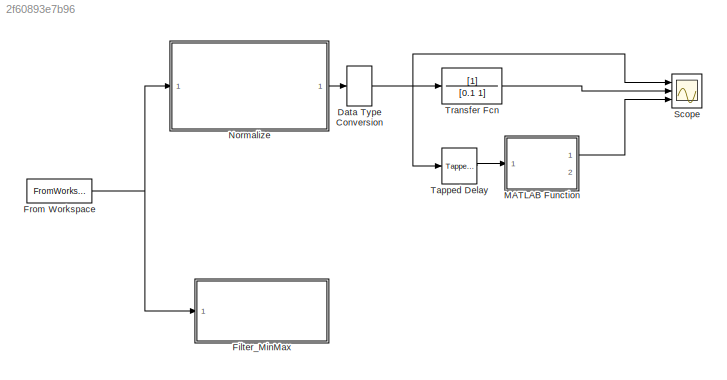
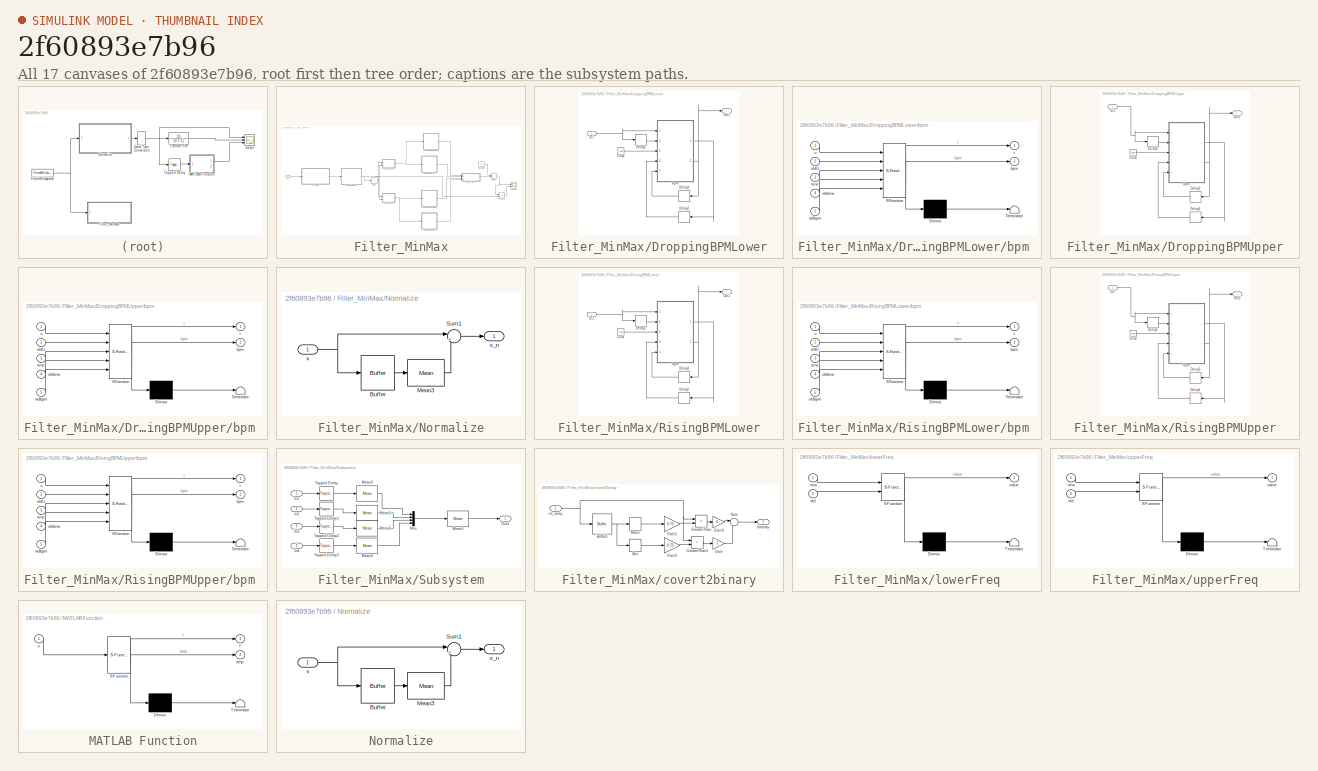
[diagram: thumbnail index - all 17 canvases of the model, root first then tree order]
MODEL slx_2f60893e7b96
KIND model
CONFIG AbsTol = auto
CONFIG EnableMultiTasking = off
CONFIG FixedStep = stepTime
CONFIG MaxStep = auto
CONFIG MinStep = auto
CONFIG RelTol = 1e-3
CONFIG SampleTimeConstraint = Unconstrained
CONFIG Solver = ode4
CONFIG SolverName = ode4
CONFIG StartTime = 0.0
CONFIG StopTime = 10
BLOCK [DataTypeConversion] Data Type Conversion
  OutDataTypeStr = double
  RndMeth = Floor
  SaturateOnIntegerOverflow = off
BLOCK [SubSystem] Filter_MinMax
  Commented = on
  Ports = [1]
  RequestExecContextInheritance = off
BLOCK [Constant] Filter_MinMax/Constant
  Value = 60
BLOCK [Delay] Filter_MinMax/Delay
  DelayLength = 1
  InputPortMap = u0
  Ports = [1, 1]
BLOCK [Product] Filter_MinMax/Divide
  InputSameDT = off
  Inputs = */
  OutDataTypeStr = Inherit: Inherit via internal rule
  Ports = [2, 1]
  RndMeth = Floor
  SaturateOnIntegerOverflow = off
BLOCK [SubSystem] Filter_MinMax/DroppingBPMLower
  Ports = [1, 1]
  RequestExecContextInheritance = off
BLOCK [Clock] Filter_MinMax/DroppingBPMLower/Clock
BLOCK [Delay] Filter_MinMax/DroppingBPMLower/Delay1
  DelayLength = 1
  InputPortMap = u0
  Ports = [1, 1]
BLOCK [Delay] Filter_MinMax/DroppingBPMLower/Delay2
  DelayLength = 1
  InputPortMap = u0
  Ports = [1, 1]
BLOCK [Delay] Filter_MinMax/DroppingBPMLower/Delay3
  DelayLength = 1
  InputPortMap = u0
  Ports = [1, 1]
BLOCK [Inport] Filter_MinMax/DroppingBPMLower/In1
  IconDisplay = Port number
BLOCK [Outport] Filter_MinMax/DroppingBPMLower/Out1
  IconDisplay = Port number
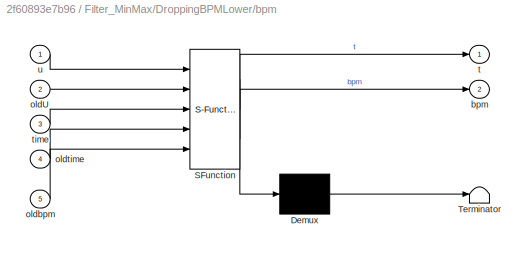
BLOCK [SubSystem] Filter_MinMax/DroppingBPMLower/bpm 
  ErrorFcn = Stateflow.Translate.translate
  PermitHierarchicalResolution = ExplicitOnly
  Ports = [5, 2]
  RequestExecContextInheritance = off
  SFBlockType = MATLAB Function
  TreatAsAtomicUnit = on
BLOCK [Demux] Filter_MinMax/DroppingBPMLower/bpm / Demux 
  Outputs = 1
  Ports = [1, 1]
BLOCK [S-Function] Filter_MinMax/DroppingBPMLower/bpm / SFunction 
  EnableBusSupport = on
  FunctionName = sf_sfun
  PortCounts = [5 3]
  Ports = [5, 3]
  SFcnIsStateOwnerBlock = off
  SFunctionDeploymentMode = off
  Tag = Stateflow S-Function filterAnalyse 4
BLOCK [Terminator] Filter_MinMax/DroppingBPMLower/bpm / Terminator 
BLOCK [Outport] Filter_MinMax/DroppingBPMLower/bpm /bpm
  IconDisplay = Port number
  Port = 2
BLOCK [Inport] Filter_MinMax/DroppingBPMLower/bpm /oldU
  IconDisplay = Port number
  Port = 2
BLOCK [Inport] Filter_MinMax/DroppingBPMLower/bpm /oldbpm
  IconDisplay = Port number
  Port = 5
BLOCK [Inport] Filter_MinMax/DroppingBPMLower/bpm /oldtime
  IconDisplay = Port number
  Port = 4
BLOCK [Outport] Filter_MinMax/DroppingBPMLower/bpm /t
  IconDisplay = Port number
BLOCK [Inport] Filter_MinMax/DroppingBPMLower/bpm /time
  IconDisplay = Port number
  Port = 3
BLOCK [Inport] Filter_MinMax/DroppingBPMLower/bpm /u
  IconDisplay = Port number
BLOCK [SubSystem] Filter_MinMax/DroppingBPMUpper
  Ports = [1, 1]
  RequestExecContextInheritance = off
BLOCK [Clock] Filter_MinMax/DroppingBPMUpper/Clock
BLOCK [Delay] Filter_MinMax/DroppingBPMUpper/Delay1
  DelayLength = 1
  InputPortMap = u0
  Ports = [1, 1]
BLOCK [Delay] Filter_MinMax/DroppingBPMUpper/Delay2
  DelayLength = 1
  InputPortMap = u0
  Ports = [1, 1]
BLOCK [Delay] Filter_MinMax/DroppingBPMUpper/Delay3
  DelayLength = 1
  InputPortMap = u0
  Ports = [1, 1]
BLOCK [Inport] Filter_MinMax/DroppingBPMUpper/In1
  IconDisplay = Port number
BLOCK [Outport] Filter_MinMax/DroppingBPMUpper/Out1
  IconDisplay = Port number
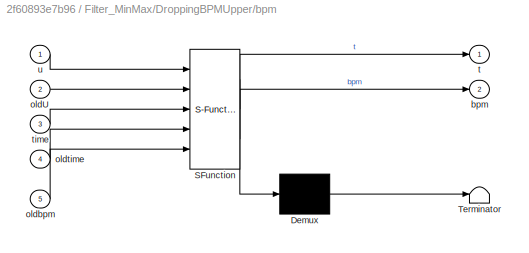
BLOCK [SubSystem] Filter_MinMax/DroppingBPMUpper/bpm 
  ErrorFcn = Stateflow.Translate.translate
  PermitHierarchicalResolution = ExplicitOnly
  Ports = [5, 2]
  RequestExecContextInheritance = off
  SFBlockType = MATLAB Function
  TreatAsAtomicUnit = on
BLOCK [Demux] Filter_MinMax/DroppingBPMUpper/bpm / Demux 
  Outputs = 1
  Ports = [1, 1]
BLOCK [S-Function] Filter_MinMax/DroppingBPMUpper/bpm / SFunction 
  EnableBusSupport = on
  FunctionName = sf_sfun
  PortCounts = [5 3]
  Ports = [5, 3]
  SFcnIsStateOwnerBlock = off
  SFunctionDeploymentMode = off
  Tag = Stateflow S-Function filterAnalyse 6
BLOCK [Terminator] Filter_MinMax/DroppingBPMUpper/bpm / Terminator 
BLOCK [Outport] Filter_MinMax/DroppingBPMUpper/bpm /bpm
  IconDisplay = Port number
  Port = 2
BLOCK [Inport] Filter_MinMax/DroppingBPMUpper/bpm /oldU
  IconDisplay = Port number
  Port = 2
BLOCK [Inport] Filter_MinMax/DroppingBPMUpper/bpm /oldbpm
  IconDisplay = Port number
  Port = 5
BLOCK [Inport] Filter_MinMax/DroppingBPMUpper/bpm /oldtime
  IconDisplay = Port number
  Port = 4
BLOCK [Outport] Filter_MinMax/DroppingBPMUpper/bpm /t
  IconDisplay = Port number
BLOCK [Inport] Filter_MinMax/DroppingBPMUpper/bpm /time
  IconDisplay = Port number
  Port = 3
BLOCK [Inport] Filter_MinMax/DroppingBPMUpper/bpm /u
  IconDisplay = Port number
BLOCK [Inport] Filter_MinMax/In1
  IconDisplay = Port number
BLOCK [SubSystem] Filter_MinMax/Normalize
  Ports = [1, 1]
  RequestExecContextInheritance = off
BLOCK [Buffer] Filter_MinMax/Normalize/Buffer
  N = normalizeBufferSize
  OutputFrames = off
BLOCK [Reference] Filter_MinMax/Normalize/Mean3  REF=dspstat3/Mean
  Ports = [1, 1]
  SourceBlock = dspstat3/Mean
  SourceProductBaseCode = DS
  SourceProductName = DSP System Toolbox
  SourceType = Mean
  UserDataPersistent = on
BLOCK [Sum] Filter_MinMax/Normalize/Sum1
  IconShape = round
  InputSameDT = off
  Inputs = |+-
  OutDataTypeStr = Inherit: Inherit via internal rule
  Ports = [2, 1]
  SaturateOnIntegerOverflow = off
BLOCK [Inport] Filter_MinMax/Normalize/x
  IconDisplay = Port number
BLOCK [Outport] Filter_MinMax/Normalize/x_n
  IconDisplay = Port number
BLOCK [Product] Filter_MinMax/Product
  InputSameDT = off
  OutDataTypeStr = Inherit: Inherit via internal rule
  Ports = [2, 1]
  RndMeth = Floor
  SaturateOnIntegerOverflow = off
BLOCK [SubSystem] Filter_MinMax/RisingBPMLower
  Ports = [1, 1]
  RequestExecContextInheritance = off
BLOCK [Clock] Filter_MinMax/RisingBPMLower/Clock
BLOCK [Delay] Filter_MinMax/RisingBPMLower/Delay1
  DelayLength = 1
  InputPortMap = u0
  Ports = [1, 1]
BLOCK [Delay] Filter_MinMax/RisingBPMLower/Delay2
  DelayLength = 1
  InputPortMap = u0
  Ports = [1, 1]
BLOCK [Delay] Filter_MinMax/RisingBPMLower/Delay3
  DelayLength = 1
  InputPortMap = u0
  Ports = [1, 1]
BLOCK [Inport] Filter_MinMax/RisingBPMLower/In1
  IconDisplay = Port number
BLOCK [Outport] Filter_MinMax/RisingBPMLower/Out1
  IconDisplay = Port number
BLOCK [SubSystem] Filter_MinMax/RisingBPMLower/bpm 
  ErrorFcn = Stateflow.Translate.translate
  PermitHierarchicalResolution = ExplicitOnly
  Ports = [5, 2]
  RequestExecContextInheritance = off
  SFBlockType = MATLAB Function
  TreatAsAtomicUnit = on
BLOCK [Demux] Filter_MinMax/RisingBPMLower/bpm / Demux 
  Outputs = 1
  Ports = [1, 1]
BLOCK [S-Function] Filter_MinMax/RisingBPMLower/bpm / SFunction 
  EnableBusSupport = on
  FunctionName = sf_sfun
  PortCounts = [5 3]
  Ports = [5, 3]
  SFcnIsStateOwnerBlock = off
  SFunctionDeploymentMode = off
  Tag = Stateflow S-Function filterAnalyse 5
BLOCK [Terminator] Filter_MinMax/RisingBPMLower/bpm / Terminator 
BLOCK [Outport] Filter_MinMax/RisingBPMLower/bpm /bpm
  IconDisplay = Port number
  Port = 2
BLOCK [Inport] Filter_MinMax/RisingBPMLower/bpm /oldU
  IconDisplay = Port number
  Port = 2
BLOCK [Inport] Filter_MinMax/RisingBPMLower/bpm /oldbpm
  IconDisplay = Port number
  Port = 5
BLOCK [Inport] Filter_MinMax/RisingBPMLower/bpm /oldtime
  IconDisplay = Port number
  Port = 4
BLOCK [Outport] Filter_MinMax/RisingBPMLower/bpm /t
  IconDisplay = Port number
BLOCK [Inport] Filter_MinMax/RisingBPMLower/bpm /time
  IconDisplay = Port number
  Port = 3
BLOCK [Inport] Filter_MinMax/RisingBPMLower/bpm /u
  IconDisplay = Port number
BLOCK [SubSystem] Filter_MinMax/RisingBPMUpper
  Ports = [1, 1]
  RequestExecContextInheritance = off
BLOCK [Clock] Filter_MinMax/RisingBPMUpper/Clock
BLOCK [Delay] Filter_MinMax/RisingBPMUpper/Delay1
  DelayLength = 1
  InputPortMap = u0
  Ports = [1, 1]
BLOCK [Delay] Filter_MinMax/RisingBPMUpper/Delay2
  DelayLength = 1
  InputPortMap = u0
  Ports = [1, 1]
BLOCK [Delay] Filter_MinMax/RisingBPMUpper/Delay3
  DelayLength = 1
  InputPortMap = u0
  Ports = [1, 1]
BLOCK [Inport] Filter_MinMax/RisingBPMUpper/In1
  IconDisplay = Port number
BLOCK [Outport] Filter_MinMax/RisingBPMUpper/Out1
  IconDisplay = Port number
BLOCK [SubSystem] Filter_MinMax/RisingBPMUpper/bpm 
  ErrorFcn = Stateflow.Translate.translate
  PermitHierarchicalResolution = ExplicitOnly
  Ports = [5, 2]
  RequestExecContextInheritance = off
  SFBlockType = MATLAB Function
  TreatAsAtomicUnit = on
BLOCK [Demux] Filter_MinMax/RisingBPMUpper/bpm / Demux 
  Outputs = 1
  Ports = [1, 1]
BLOCK [S-Function] Filter_MinMax/RisingBPMUpper/bpm / SFunction 
  EnableBusSupport = on
  FunctionName = sf_sfun
  PortCounts = [5 3]
  Ports = [5, 3]
  SFcnIsStateOwnerBlock = off
  SFunctionDeploymentMode = off
  Tag = Stateflow S-Function filterAnalyse 3
BLOCK [Terminator] Filter_MinMax/RisingBPMUpper/bpm / Terminator 
BLOCK [Outport] Filter_MinMax/RisingBPMUpper/bpm /bpm
  IconDisplay = Port number
  Port = 2
BLOCK [Inport] Filter_MinMax/RisingBPMUpper/bpm /oldU
  IconDisplay = Port number
  Port = 2
BLOCK [Inport] Filter_MinMax/RisingBPMUpper/bpm /oldbpm
  IconDisplay = Port number
  Port = 5
BLOCK [Inport] Filter_MinMax/RisingBPMUpper/bpm /oldtime
  IconDisplay = Port number
  Port = 4
BLOCK [Outport] Filter_MinMax/RisingBPMUpper/bpm /t
  IconDisplay = Port number
BLOCK [Inport] Filter_MinMax/RisingBPMUpper/bpm /time
  IconDisplay = Port number
  Port = 3
BLOCK [Inport] Filter_MinMax/RisingBPMUpper/bpm /u
  IconDisplay = Port number
BLOCK [Scope] Filter_MinMax/Scope1
  Floating = off
  NumInputPorts = 2
  Ports = [2]
  ScopeSpecificationString = Simulink.scopes.TimeScopeBlockCfg('CurrentConfiguration', extmgr.ConfigurationSet(extmgr.Configuration('Core','General UI',true),extmgr.Configuration('Core','Source UI',true),extmgr.Configuration('Sources','WiredSimulink',true,'DataLoggingVariableName','ScopeData2'),extmgr.Configuration('Visuals','Time Domain',true,'SerializedDisplays',{struct('MinYLimReal','-185.05331','MaxYLimReal','198.70317','...<+1497ch>
BLOCK [SubSystem] Filter_MinMax/Subsystem
  Ports = [4, 1]
  RequestExecContextInheritance = off
BLOCK [Inport] Filter_MinMax/Subsystem/In1
  IconDisplay = Port number
BLOCK [Inport] Filter_MinMax/Subsystem/In2
  IconDisplay = Port number
  Port = 2
BLOCK [Inport] Filter_MinMax/Subsystem/In3
  IconDisplay = Port number
  Port = 3
BLOCK [Inport] Filter_MinMax/Subsystem/In4
  IconDisplay = Port number
  Port = 4
BLOCK [Reference] Filter_MinMax/Subsystem/Mean1  REF=dspstat3/Mean
  Ports = [1, 1]
  SourceBlock = dspstat3/Mean
  SourceProductBaseCode = DS
  SourceProductName = DSP System Toolbox
  SourceType = Mean
  UserDataPersistent = on
BLOCK [Reference] Filter_MinMax/Subsystem/Mean2  REF=dspstat3/Mean
  Ports = [1, 1]
  SourceBlock = dspstat3/Mean
  SourceProductBaseCode = DS
  SourceProductName = DSP System Toolbox
  SourceType = Mean
  UserDataPersistent = on
BLOCK [Reference] Filter_MinMax/Subsystem/Mean3  REF=dspstat3/Mean
  Ports = [1, 1]
  SourceBlock = dspstat3/Mean
  SourceProductBaseCode = DS
  SourceProductName = DSP System Toolbox
  SourceType = Mean
  UserDataPersistent = on
BLOCK [Reference] Filter_MinMax/Subsystem/Mean4  REF=dspstat3/Mean
  Ports = [1, 1]
  SourceBlock = dspstat3/Mean
  SourceProductBaseCode = DS
  SourceProductName = DSP System Toolbox
  SourceType = Mean
  UserDataPersistent = on
BLOCK [Reference] Filter_MinMax/Subsystem/Mean5  REF=dspstat3/Mean
  Ports = [1, 1]
  SourceBlock = dspstat3/Mean
  SourceProductBaseCode = DS
  SourceProductName = DSP System Toolbox
  SourceType = Mean
  UserDataPersistent = on
BLOCK [Mux] Filter_MinMax/Subsystem/Mux
  DisplayOption = bar
  Ports = [4, 1]
BLOCK [Outport] Filter_MinMax/Subsystem/Out1
  IconDisplay = Port number
BLOCK [Reference] Filter_MinMax/Subsystem/Tapped Delay  REF=simulink/Discrete/Tapped Delay
  Ports = [1, 1]
  SourceBlock = simulink/Discrete/Tapped Delay
  SourceProductBaseCode = SL
  SourceProductName = Simulink
  SourceType = Tapped Delay Line
BLOCK [Reference] Filter_MinMax/Subsystem/Tapped Delay1  REF=simulink/Discrete/Tapped Delay
  Ports = [1, 1]
  SourceBlock = simulink/Discrete/Tapped Delay
  SourceProductBaseCode = SL
  SourceProductName = Simulink
  SourceType = Tapped Delay Line
BLOCK [Reference] Filter_MinMax/Subsystem/Tapped Delay2  REF=simulink/Discrete/Tapped Delay
  Ports = [1, 1]
  SourceBlock = simulink/Discrete/Tapped Delay
  SourceProductBaseCode = SL
  SourceProductName = Simulink
  SourceType = Tapped Delay Line
BLOCK [Reference] Filter_MinMax/Subsystem/Tapped Delay3  REF=simulink/Discrete/Tapped Delay
  Ports = [1, 1]
  SourceBlock = simulink/Discrete/Tapped Delay
  SourceProductBaseCode = SL
  SourceProductName = Simulink
  SourceType = Tapped Delay Line
BLOCK [SubSystem] Filter_MinMax/covert2binary
  Ports = [1, 1]
  RequestExecContextInheritance = off
BLOCK [Buffer] Filter_MinMax/covert2binary/Buffer1
  N = minmaxBuffer
  OutputFrames = off
BLOCK [Gain] Filter_MinMax/covert2binary/Gain
  Gain = -1
  OutDataTypeStr = Inherit: Inherit via internal rule
  ParamDataTypeStr = Inherit: Inherit via internal rule
  SaturateOnIntegerOverflow = off
BLOCK [Gain] Filter_MinMax/covert2binary/Gain1
  Gain = 0.75
  OutDataTypeStr = Inherit: Inherit via internal rule
  ParamDataTypeStr = Inherit: Inherit via internal rule
  SaturateOnIntegerOverflow = off
BLOCK [Gain] Filter_MinMax/covert2binary/Gain2
  Gain = 0.75
  OutDataTypeStr = Inherit: Inherit via internal rule
  ParamDataTypeStr = Inherit: Inherit via internal rule
  SaturateOnIntegerOverflow = off
BLOCK [Gain] Filter_MinMax/covert2binary/Gain3
  OutDataTypeStr = Inherit: Inherit via internal rule
  ParamDataTypeStr = Inherit: Inherit via internal rule
  SaturateOnIntegerOverflow = off
BLOCK [RelationalOperator] Filter_MinMax/covert2binary/GreaterThan
  InputSameDT = off
  Operator = >
  OutDataTypeStr = boolean
  Ports = [2, 1]
  RndMeth = Simplest
BLOCK [RelationalOperator] Filter_MinMax/covert2binary/GreaterThan1
  InputSameDT = off
  Operator = <
  OutDataTypeStr = boolean
  Ports = [2, 1]
  RndMeth = Simplest
BLOCK [MinMax] Filter_MinMax/covert2binary/Max1
  Function = max
  InputSameDT = off
  Ports = [1, 1]
  SaturateOnIntegerOverflow = off
BLOCK [MinMax] Filter_MinMax/covert2binary/Min
  InputSameDT = off
  Ports = [1, 1]
  SaturateOnIntegerOverflow = off
BLOCK [Sum] Filter_MinMax/covert2binary/Sum
  IconShape = round
  InputSameDT = off
  Inputs = |++
  OutDataTypeStr = Inherit: Inherit via internal rule
  Ports = [2, 1]
  SaturateOnIntegerOverflow = off
BLOCK [Outport] Filter_MinMax/covert2binary/bitarray
  IconDisplay = Port number
BLOCK [Inport] Filter_MinMax/covert2binary/int_array
  IconDisplay = Port number
BLOCK [SubSystem] Filter_MinMax/lowerFreq
  ErrorFcn = Stateflow.Translate.translate
  PermitHierarchicalResolution = ExplicitOnly
  Ports = [2, 1]
  RequestExecContextInheritance = off
  SFBlockType = MATLAB Function
  TreatAsAtomicUnit = on
BLOCK [Demux] Filter_MinMax/lowerFreq/ Demux 
  Outputs = 1
  Ports = [1, 1]
BLOCK [S-Function] Filter_MinMax/lowerFreq/ SFunction 
  EnableBusSupport = on
  FunctionName = sf_sfun
  PortCounts = [2 2]
  Ports = [2, 2]
  SFcnIsStateOwnerBlock = off
  SFunctionDeploymentMode = off
  Tag = Stateflow S-Function filterAnalyse 1
BLOCK [Terminator] Filter_MinMax/lowerFreq/ Terminator 
BLOCK [Inport] Filter_MinMax/lowerFreq/new
  IconDisplay = Port number
BLOCK [Inport] Filter_MinMax/lowerFreq/old
  IconDisplay = Port number
  Port = 2
BLOCK [Outport] Filter_MinMax/lowerFreq/value
  IconDisplay = Port number
BLOCK [SubSystem] Filter_MinMax/upperFreq
  ErrorFcn = Stateflow.Translate.translate
  PermitHierarchicalResolution = ExplicitOnly
  Ports = [2, 1]
  RequestExecContextInheritance = off
  SFBlockType = MATLAB Function
  TreatAsAtomicUnit = on
BLOCK [Demux] Filter_MinMax/upperFreq/ Demux 
  Outputs = 1
  Ports = [1, 1]
BLOCK [S-Function] Filter_MinMax/upperFreq/ SFunction 
  EnableBusSupport = on
  FunctionName = sf_sfun
  PortCounts = [2 2]
  Ports = [2, 2]
  SFcnIsStateOwnerBlock = off
  SFunctionDeploymentMode = off
  Tag = Stateflow S-Function filterAnalyse 2
BLOCK [Terminator] Filter_MinMax/upperFreq/ Terminator 
BLOCK [Inport] Filter_MinMax/upperFreq/new
  IconDisplay = Port number
BLOCK [Inport] Filter_MinMax/upperFreq/old
  IconDisplay = Port number
  Port = 2
BLOCK [Outport] Filter_MinMax/upperFreq/value
  IconDisplay = Port number
BLOCK [FromWorkspace] From Workspace
  Interpolate = off
  OutDataTypeStr = int16
  OutputAfterFinalValue = Setting to zero
  SampleTime = stepTime
  VariableName = tsRate
  ZeroCross = on
BLOCK [SubSystem] MATLAB Function
  ErrorFcn = Stateflow.Translate.translate
  PermitHierarchicalResolution = ExplicitOnly
  Ports = [1, 2]
  RequestExecContextInheritance = off
  SFBlockType = MATLAB Function
  TreatAsAtomicUnit = on
BLOCK [Demux] MATLAB Function/ Demux 
  Outputs = 1
  Ports = [1, 1]
BLOCK [S-Function] MATLAB Function/ SFunction 
  EnableBusSupport = on
  FunctionName = sf_sfun
  PortCounts = [1 3]
  Ports = [1, 3]
  SFcnIsStateOwnerBlock = off
  SFunctionDeploymentMode = off
  Tag = Stateflow S-Function filterAnalyse 7
BLOCK [Terminator] MATLAB Function/ Terminator 
BLOCK [Outport] MATLAB Function/amp
  IconDisplay = Port number
  Port = 2
BLOCK [Outport] MATLAB Function/f
  IconDisplay = Port number
BLOCK [Inport] MATLAB Function/u
  IconDisplay = Port number
BLOCK [SubSystem] Normalize
  Ports = [1, 1]
  RequestExecContextInheritance = off
BLOCK [Buffer] Normalize/Buffer
  N = normalizeBufferSize
  OutputFrames = off
BLOCK [Reference] Normalize/Mean3  REF=dspstat3/Mean
  Ports = [1, 1]
  SourceBlock = dspstat3/Mean
  SourceProductBaseCode = DS
  SourceProductName = DSP System Toolbox
  SourceType = Mean
  UserDataPersistent = on
BLOCK [Sum] Normalize/Sum1
  IconShape = round
  InputSameDT = off
  Inputs = |+-
  OutDataTypeStr = Inherit: Inherit via internal rule
  Ports = [2, 1]
  SaturateOnIntegerOverflow = off
BLOCK [Inport] Normalize/x
  IconDisplay = Port number
BLOCK [Outport] Normalize/x_n
  IconDisplay = Port number
BLOCK [Scope] Scope
  Floating = off
  NumInputPorts = 3
  Ports = [3]
  ScopeSpecificationString = Simulink.scopes.TimeScopeBlockCfg('CurrentConfiguration', extmgr.ConfigurationSet(extmgr.Configuration('Core','General UI',true),extmgr.Configuration('Core','Source UI',true),extmgr.Configuration('Sources','WiredSimulink',true,'DataLoggingVariableName','ScopeData1'),extmgr.Configuration('Visuals','Time Domain',true,'SerializedDisplays',{struct('MinYLimReal','-2129.5','MaxYLimReal','2145.5','YLabel...<+1461ch>
BLOCK [Reference] Tapped Delay  REF=simulink/Discrete/Tapped Delay
  Ports = [1, 1]
  SourceBlock = simulink/Discrete/Tapped Delay
  SourceProductBaseCode = SL
  SourceProductName = Simulink
  SourceType = Tapped Delay Line
BLOCK [TransferFcn] Transfer Fcn
  Denominator = [0.1 1]
NET Data Type Conversion:1 -> Scope:1, Tapped Delay:1, Transfer Fcn:1
LINE Filter_MinMax/Constant:1 -> Filter_MinMax/Divide:1
NET Filter_MinMax/Delay:1 -> Filter_MinMax/lowerFreq:2, Filter_MinMax/upperFreq:2
NET Filter_MinMax/Divide:1 -> Filter_MinMax/Product:1, Filter_MinMax/Scope1:1
LINE Filter_MinMax/DroppingBPMLower/Clock:1 -> Filter_MinMax/DroppingBPMLower/bpm :3
LINE Filter_MinMax/DroppingBPMLower/Delay1:1 -> Filter_MinMax/DroppingBPMLower/bpm :2
LINE Filter_MinMax/DroppingBPMLower/Delay2:1 -> Filter_MinMax/DroppingBPMLower/bpm :4
LINE Filter_MinMax/DroppingBPMLower/Delay3:1 -> Filter_MinMax/DroppingBPMLower/bpm :5
NET Filter_MinMax/DroppingBPMLower/In1:1 -> Filter_MinMax/DroppingBPMLower/Delay1:1, Filter_MinMax/DroppingBPMLower/bpm :1
LINE Filter_MinMax/DroppingBPMLower/bpm :1 -> Filter_MinMax/DroppingBPMLower/Delay2:1
NET Filter_MinMax/DroppingBPMLower/bpm :2 -> Filter_MinMax/DroppingBPMLower/Delay3:1, Filter_MinMax/DroppingBPMLower/Out1:1
LINE Filter_MinMax/DroppingBPMLower:1 -> Filter_MinMax/Subsystem:3
LINE Filter_MinMax/DroppingBPMUpper/Clock:1 -> Filter_MinMax/DroppingBPMUpper/bpm :3
LINE Filter_MinMax/DroppingBPMUpper/Delay1:1 -> Filter_MinMax/DroppingBPMUpper/bpm :2
LINE Filter_MinMax/DroppingBPMUpper/Delay2:1 -> Filter_MinMax/DroppingBPMUpper/bpm :4
LINE Filter_MinMax/DroppingBPMUpper/Delay3:1 -> Filter_MinMax/DroppingBPMUpper/bpm :5
NET Filter_MinMax/DroppingBPMUpper/In1:1 -> Filter_MinMax/DroppingBPMUpper/Delay1:1, Filter_MinMax/DroppingBPMUpper/bpm :1
LINE Filter_MinMax/DroppingBPMUpper/bpm :1 -> Filter_MinMax/DroppingBPMUpper/Delay2:1
NET Filter_MinMax/DroppingBPMUpper/bpm :2 -> Filter_MinMax/DroppingBPMUpper/Delay3:1, Filter_MinMax/DroppingBPMUpper/Out1:1
LINE Filter_MinMax/DroppingBPMUpper:1 -> Filter_MinMax/Subsystem:1
LINE Filter_MinMax/In1:1 -> Filter_MinMax/Normalize:1
LINE Filter_MinMax/Normalize/Buffer:1 -> Filter_MinMax/Normalize/Mean3:1
LINE Filter_MinMax/Normalize/Mean3:1 -> Filter_MinMax/Normalize/Sum1:2
LINE Filter_MinMax/Normalize/Sum1:1 -> Filter_MinMax/Normalize/x_n:1
NET Filter_MinMax/Normalize/x:1 -> Filter_MinMax/Normalize/Buffer:1, Filter_MinMax/Normalize/Sum1:1
LINE Filter_MinMax/Normalize:1 -> Filter_MinMax/covert2binary:1
LINE Filter_MinMax/Product:1 -> Filter_MinMax/Scope1:2
LINE Filter_MinMax/RisingBPMLower/Clock:1 -> Filter_MinMax/RisingBPMLower/bpm :3
LINE Filter_MinMax/RisingBPMLower/Delay1:1 -> Filter_MinMax/RisingBPMLower/bpm :2
LINE Filter_MinMax/RisingBPMLower/Delay2:1 -> Filter_MinMax/RisingBPMLower/bpm :4
LINE Filter_MinMax/RisingBPMLower/Delay3:1 -> Filter_MinMax/RisingBPMLower/bpm :5
NET Filter_MinMax/RisingBPMLower/In1:1 -> Filter_MinMax/RisingBPMLower/Delay1:1, Filter_MinMax/RisingBPMLower/bpm :1
LINE Filter_MinMax/RisingBPMLower/bpm :1 -> Filter_MinMax/RisingBPMLower/Delay2:1
NET Filter_MinMax/RisingBPMLower/bpm :2 -> Filter_MinMax/RisingBPMLower/Delay3:1, Filter_MinMax/RisingBPMLower/Out1:1
LINE Filter_MinMax/RisingBPMLower:1 -> Filter_MinMax/Subsystem:4
LINE Filter_MinMax/RisingBPMUpper/Clock:1 -> Filter_MinMax/RisingBPMUpper/bpm :3
LINE Filter_MinMax/RisingBPMUpper/Delay1:1 -> Filter_MinMax/RisingBPMUpper/bpm :2
LINE Filter_MinMax/RisingBPMUpper/Delay2:1 -> Filter_MinMax/RisingBPMUpper/bpm :4
LINE Filter_MinMax/RisingBPMUpper/Delay3:1 -> Filter_MinMax/RisingBPMUpper/bpm :5
NET Filter_MinMax/RisingBPMUpper/In1:1 -> Filter_MinMax/RisingBPMUpper/Delay1:1, Filter_MinMax/RisingBPMUpper/bpm :1
LINE Filter_MinMax/RisingBPMUpper/bpm :1 -> Filter_MinMax/RisingBPMUpper/Delay2:1
NET Filter_MinMax/RisingBPMUpper/bpm :2 -> Filter_MinMax/RisingBPMUpper/Delay3:1, Filter_MinMax/RisingBPMUpper/Out1:1
LINE Filter_MinMax/RisingBPMUpper:1 -> Filter_MinMax/Subsystem:2
LINE Filter_MinMax/Subsystem/In1:1 -> Filter_MinMax/Subsystem/Tapped Delay:1
LINE Filter_MinMax/Subsystem/In2:1 -> Filter_MinMax/Subsystem/Tapped Delay1:1
LINE Filter_MinMax/Subsystem/In3:1 -> Filter_MinMax/Subsystem/Tapped Delay2:1
LINE Filter_MinMax/Subsystem/In4:1 -> Filter_MinMax/Subsystem/Tapped Delay3:1
LINE Filter_MinMax/Subsystem/Mean1:1 -> Filter_MinMax/Subsystem/Mux:2
LINE Filter_MinMax/Subsystem/Mean2:1 -> Filter_MinMax/Subsystem/Mux:3
LINE Filter_MinMax/Subsystem/Mean3:1 -> Filter_MinMax/Subsystem/Mux:1
LINE Filter_MinMax/Subsystem/Mean4:1 -> Filter_MinMax/Subsystem/Mux:4
LINE Filter_MinMax/Subsystem/Mean5:1 -> Filter_MinMax/Subsystem/Out1:1
LINE Filter_MinMax/Subsystem/Mux:1 -> Filter_MinMax/Subsystem/Mean5:1
LINE Filter_MinMax/Subsystem/Tapped Delay1:1 -> Filter_MinMax/Subsystem/Mean1:1
LINE Filter_MinMax/Subsystem/Tapped Delay2:1 -> Filter_MinMax/Subsystem/Mean2:1
LINE Filter_MinMax/Subsystem/Tapped Delay3:1 -> Filter_MinMax/Subsystem/Mean4:1
LINE Filter_MinMax/Subsystem/Tapped Delay:1 -> Filter_MinMax/Subsystem/Mean3:1
LINE Filter_MinMax/Subsystem:1 -> Filter_MinMax/Divide:2
NET Filter_MinMax/covert2binary/Buffer1:1 -> Filter_MinMax/covert2binary/Max1:1, Filter_MinMax/covert2binary/Min:1
LINE Filter_MinMax/covert2binary/Gain1:1 -> Filter_MinMax/covert2binary/GreaterThan:2
LINE Filter_MinMax/covert2binary/Gain2:1 -> Filter_MinMax/covert2binary/GreaterThan1:2
LINE Filter_MinMax/covert2binary/Gain3:1 -> Filter_MinMax/covert2binary/Sum:1
LINE Filter_MinMax/covert2binary/Gain:1 -> Filter_MinMax/covert2binary/Sum:2
LINE Filter_MinMax/covert2binary/GreaterThan1:1 -> Filter_MinMax/covert2binary/Gain:1
LINE Filter_MinMax/covert2binary/GreaterThan:1 -> Filter_MinMax/covert2binary/Gain3:1
LINE Filter_MinMax/covert2binary/Max1:1 -> Filter_MinMax/covert2binary/Gain1:1
LINE Filter_MinMax/covert2binary/Min:1 -> Filter_MinMax/covert2binary/Gain2:1
LINE Filter_MinMax/covert2binary/Sum:1 -> Filter_MinMax/covert2binary/bitarray:1
NET Filter_MinMax/covert2binary/int_array:1 -> Filter_MinMax/covert2binary/Buffer1:1, Filter_MinMax/covert2binary/GreaterThan1:1, Filter_MinMax/covert2binary/GreaterThan:1
NET Filter_MinMax/covert2binary:1 -> Filter_MinMax/Delay:1, Filter_MinMax/Product:2, Filter_MinMax/lowerFreq:1, Filter_MinMax/upperFreq:1
NET Filter_MinMax/lowerFreq:1 -> Filter_MinMax/DroppingBPMLower:1, Filter_MinMax/RisingBPMLower:1
NET Filter_MinMax/upperFreq:1 -> Filter_MinMax/DroppingBPMUpper:1, Filter_MinMax/RisingBPMUpper:1
NET From Workspace:1 -> Filter_MinMax:1, Normalize:1
LINE MATLAB Function:1 -> Scope:3
LINE Normalize/Buffer:1 -> Normalize/Mean3:1
LINE Normalize/Mean3:1 -> Normalize/Sum1:2
LINE Normalize/Sum1:1 -> Normalize/x_n:1
NET Normalize/x:1 -> Normalize/Buffer:1, Normalize/Sum1:1
LINE Normalize:1 -> Data Type Conversion:1
LINE Tapped Delay:1 -> MATLAB Function:1
LINE Transfer Fcn:1 -> Scope:2
note: NET lines group one-source signal fan-out (src -> all destinations, sorted); 1:1 wires keep LINE
CHART Filter_MinMax/lowerFreq states=1 transitions=1
  STATE_LABEL 'eML_blk_kernel()'
  STATE_LABEL 'SCRIPT:\nfunction value = fcn(new, old)\n    value = 0;\n    if(new == 0)\n        if(old == -1)\n            value = 1;\n        end\n    end\n   \nend\n'
CHART Filter_MinMax/upperFreq states=1 transitions=1
  STATE_LABEL 'eML_blk_kernel()'
  STATE_LABEL 'SCRIPT:\nfunction value = fcn(new, old)\n    value = 0;\n    if(new == 1)\n        if(old == 0)\n            value = 1;\n        end\n    end\n   \nend\n'
CHART Filter_MinMax/RisingBPMUpper/bpm
 states=1 transitions=1
  STATE_LABEL 'eML_blk_kernel()'
  STATE_LABEL 'SCRIPT:\nfunction [t, bpm] = fcn(u, oldU, time, oldtime, oldbpm)\n        t = oldtime;\n        bpm = oldbpm;\n        if(oldU == 0)\n            if(u == 1)\n                t = time;\n                bpm = time - oldtime;\n            end\n        end\nend\n'
CHART Filter_MinMax/DroppingBPMLower/bpm
 states=1 transitions=1
  STATE_LABEL 'eML_blk_kernel()'
  STATE_LABEL 'SCRIPT:\nfunction [t, bpm] = fcn(u, oldU, time, oldtime, oldbpm)\n        t = oldtime;\n        bpm = oldbpm;\n        if(oldU == 0)\n            if(u == 1)\n                t = time;\n                bpm = time - oldtime;\n            end\n        end\nend\n'
CHART Filter_MinMax/RisingBPMLower/bpm
 states=1 transitions=1
  STATE_LABEL 'eML_blk_kernel()'
  STATE_LABEL 'SCRIPT:\nfunction [t, bpm] = fcn(u, oldU, time, oldtime, oldbpm)\n        t = oldtime;\n        bpm = oldbpm;\n        if(oldU == 1)\n            if(u == 0)\n                t = time;\n                bpm = time - oldtime;\n            end\n        end\nend\n'
CHART Filter_MinMax/DroppingBPMUpper/bpm
 states=1 transitions=1
  STATE_LABEL 'eML_blk_kernel()'
  STATE_LABEL 'SCRIPT:\nfunction [t, bpm] = fcn(u, oldU, time, oldtime, oldbpm)\n        t = oldtime;\n        bpm = oldbpm;\n        if(oldU == 1)\n            if(u == 0)\n                t = time;\n                bpm = time - oldtime;\n            end\n        end\nend\n'
CHART MATLAB Function states=1 transitions=1
  STATE_LABEL 'eML_blk_kernel()'
  STATE_LABEL 'SCRIPT:\nfunction [f, amp]  = fcn(u)\n    windowSize = 100;\n    Y = fft(u, windowSize);\n    P2 = abs(Y/windowSize);\n    P1 = P2(1:windowSize/2+1);\n    P1(2:end-1) = 2*P1(2:end-1);\n    [maxP1, index] = max(P1);\n    freq = 25*(0:(windowSize/2))/windowSize;\n    f = freq(index);\n    amp = maxP1;\nend\n'
